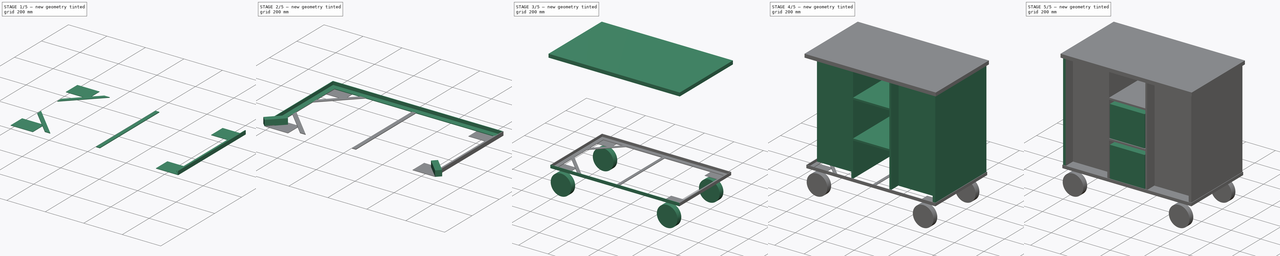
[diagram: build sequence overview — one tinted view per stage of 5, left to right]
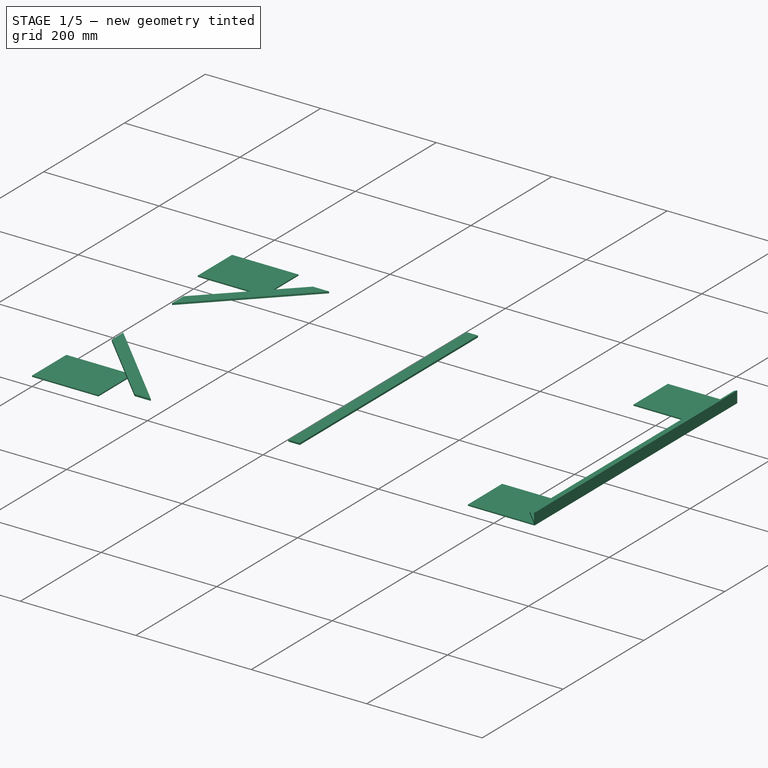
[diagram: stage 1 of 5 — iso view after this stage's code; geometry added in this stage tinted green]
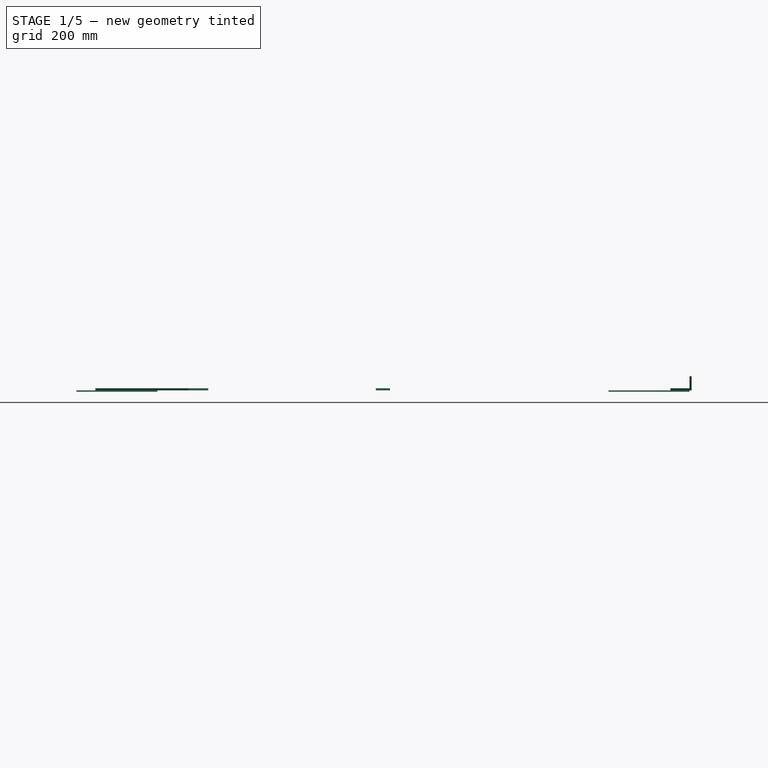
[diagram: stage 1 of 5 — front view after this stage's code; geometry added in this stage tinted green]
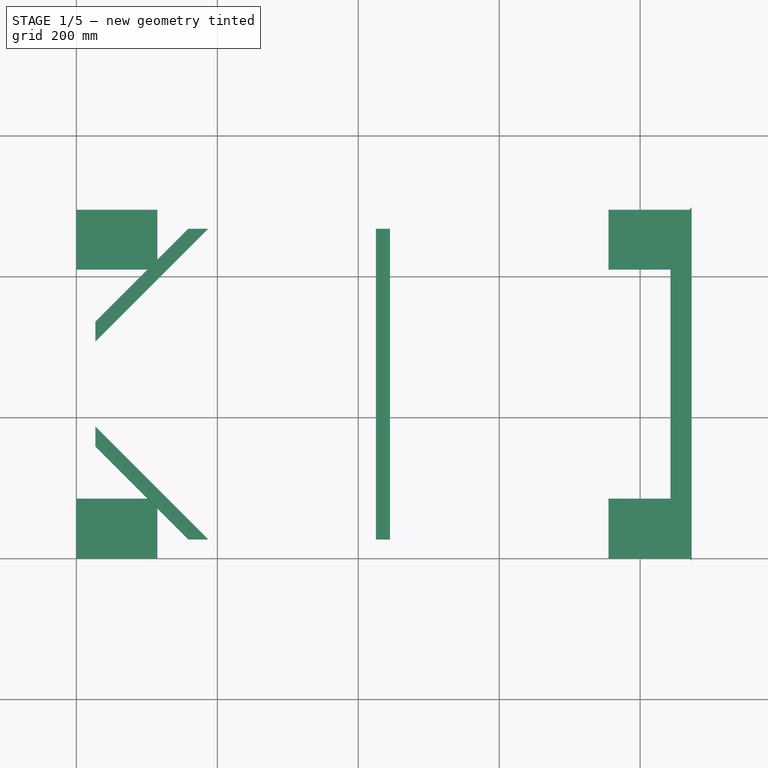
[diagram: stage 1 of 5 — top view after this stage's code; geometry added in this stage tinted green]
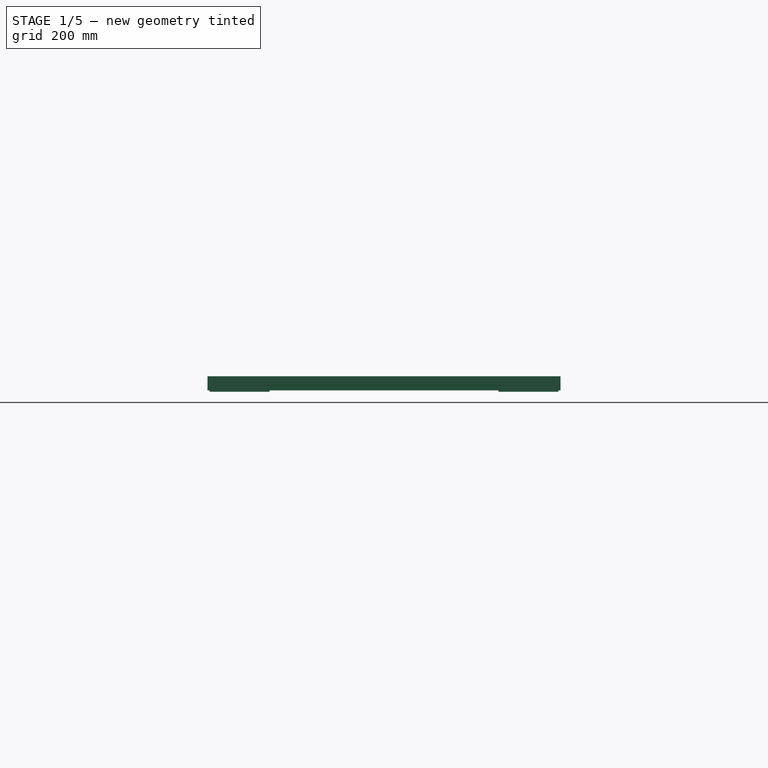
[diagram: stage 1 of 5 — right view after this stage's code; geometry added in this stage tinted green]
FCSTD DOCUMENT  (FreeCAD 0.14R3702 (Git))
Label: Werkstattwagen-3D
License: CC-BY 3.0
LicenseURL: http://creativecommons.org/licenses/by/3.0/
objects: Part::Box×25, Part::Feature×9, Part::Cylinder×4, Part::Cut×4, Sketcher::SketchObject×3, PartDesign::Pad×3, Part::Mirroring×3, Part::Compound×2, Drawing::FeatureViewPart×1, Drawing::FeaturePage×1
note: 56 computed .brp shape members not serialized (recipe doc carries the construction recipe); baked Part::Feature solids carry a one-line shape summary decoded from their .brp

FEATURE [Part::Feature] Cut005
  shape: bbox 30 x 501 x 20 mm, 8 faces (baked)
FEATURE [Part::Mirroring] Part__Mirroring001  label="Rahmen4"
  Base = (0,0,0)
  Normal = (1,0,0)
  Placement = pos=(870,0,0) rot=(0,0,1;0rad)
  Source = -> Cut005
FEATURE [Part::Box] Box024  label="Querstrebe"
  Height = 3
  Length = 20
  Placement = pos=(425,27,-3) rot=(0,0,1;0rad)
  Width = 441
FEATURE [Part::Box] Box025  label="RadPlatte1"
  Height = 2
  Length = 115
  Placement = pos=(0,0,-5) rot=(0,0,1;0rad)
  Width = 85
FEATURE [Part::Box] Box026  label="RadPlatte2"
  Height = 2
  Length = 115
  Placement = pos=(755,0,-5) rot=(0,0,1;0rad)
  Width = 85
FEATURE [Part::Box] Box027  label="RadPatte3"
  Height = 2
  Length = 115
  Placement = pos=(755,410,-5) rot=(0,0,1;0rad)
  Width = 85
FEATURE [Part::Box] Box028  label="RadPlatte4"
  Height = 2
  Length = 115
  Placement = pos=(0,410,-5) rot=(0,0,1;0rad)
  Width = 85
FEATURE [Sketcher::SketchObject] Sketch003
  sketch-geometry (4):
    g0: LineSegment StartX=158.86 StartY=27 StartZ=0 EndX=187.144 EndY=27 EndZ=0
    g1: LineSegment StartX=187.144 StartY=27 StartZ=0 EndX=27 EndY=187.144 EndZ=0
    g2: LineSegment StartX=27 StartY=187.144 StartZ=0 EndX=27 EndY=158.86 EndZ=0
    g3: LineSegment StartX=27 StartY=158.86 StartZ=0 EndX=158.86 EndY=27 EndZ=0
  constraints (12):
    c: Horizontal(g0)
    c: Coincident(g0,g1)
    c: Coincident(g1,g2)
    c: Vertical(g2)
    c: Coincident(g2,g3)
    c: Coincident(g0,g3)
    c: Parallel(g3,g1)
    c: Distance(g0,g1) = 20
    c: DistanceX(g-1,g0) = 158.86
    c: DistanceY(g-1,g0) = 27
    c: DistanceX(g-1,g2) = 27
    c: Angle(g3) = -0.785398
FEATURE [PartDesign::Pad] Pad002004  label="Winkelstrebe1"
  Length = 3
  Length2 = 100
  Reversed = true
  Sketch = -> Sketch003
  Type = 0
FEATURE [Part::Feature] Pad002004001  label="Winkelstrebe002"
  shape: bbox 160.1 x 160.1 x 3 mm, 6 faces (baked)
FEATURE [Part::Mirroring] Part__Mirroring006  label="Winkelstrebe002 (Mirror #5)"
  Base = (0,0,0)
  Normal = (0,1,0)
  Placement = pos=(0,495,0) rot=(0,0,1;0rad)
  Source = -> Pad002004001
FEATURE [Part::Feature] Part__Mirroring005001  label="Winkelstrebe004 (Mirror #4)001 (Mirror #5)001"
  Placement = pos=(870,0,0) rot=(0,0,1;0rad)
  shape: bbox 160.1 x 160.1 x 3 mm, 6 faces (baked)
FEATURE [Part::Feature] Part__Mirroring002001  label="Winkelstrebe003 (Mirror #3)001"
  Placement = pos=(870,0,0) rot=(0,0,1;0rad)
  shape: bbox 160.1 x 160.1 x 3 mm, 6 faces (baked)
FEATURE [Part::Feature] Cut001001_solid  label="Rahmen005 (Solid)"
  shape: bbox 876 x 30 x 20 mm, 8 faces (baked)
FEATURE [Part::Feature] Part__Mirroring005002_solid  label="Rahmen006 (Solid)"
  shape: bbox 876 x 30 x 20 mm, 8 faces (baked)
FEATURE [Part::Feature] Cut004001_solid  label="Rahmen007 (Solid)"
  shape: bbox 30 x 501 x 20 mm, 8 faces (baked)
FEATURE [Part::Feature] Part__Mirroring001001_solid  label="Rahmen008 (Solid)"
  shape: bbox 30 x 501 x 20 mm, 8 faces (baked)
FEATURE [Drawing::FeatureViewPart] Ortho  label="Ortho_-1_1"
  Direction = (0.57735,-0.57735,0.57735)
  HiddenWidth = 0.15
  LineWidth = 0.35
  Rotation = -120
  Scale = 0.1
  ShowHiddenLines = true
  ShowSmoothLines = false
  Tolerance = 0.05
  ViewResult = <blob: 23587 chars omitted>
  X = 52.1289
  Y = 102.737
FEATURE [Drawing::FeaturePage] Page
  Group = -> [Ortho]
  Template = <path>
note: 1 file-system path scrubbed to <path> (originals preserved in the JSON sidecar)
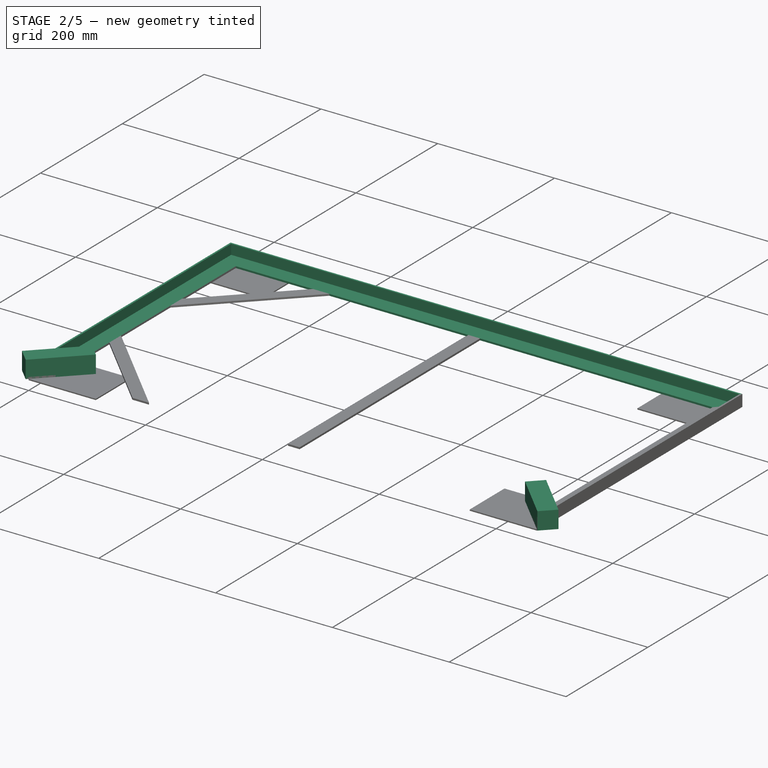
[diagram: stage 2 of 5 — iso view after this stage's code; geometry added in this stage tinted green]
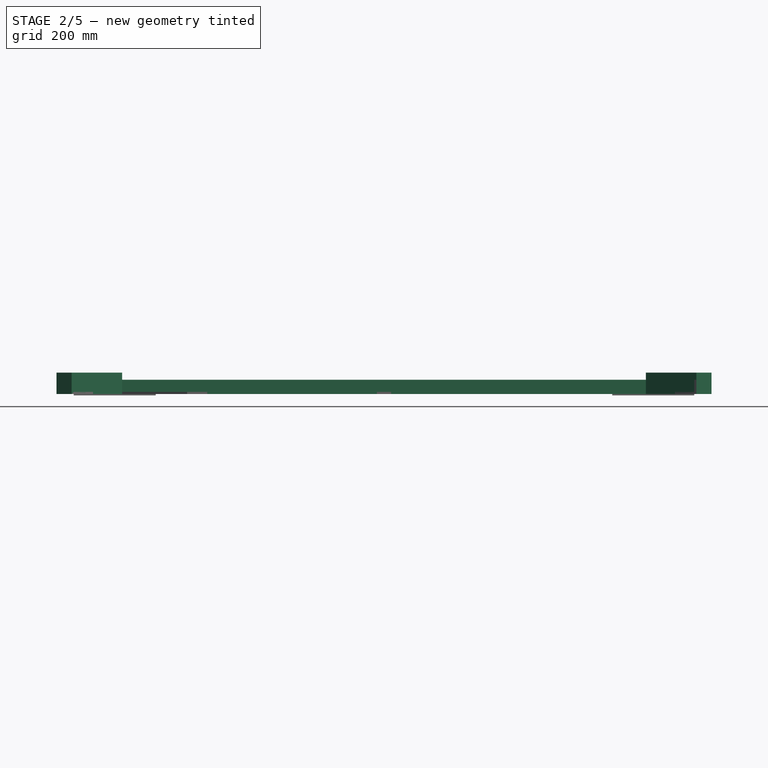
[diagram: stage 2 of 5 — front view after this stage's code; geometry added in this stage tinted green]
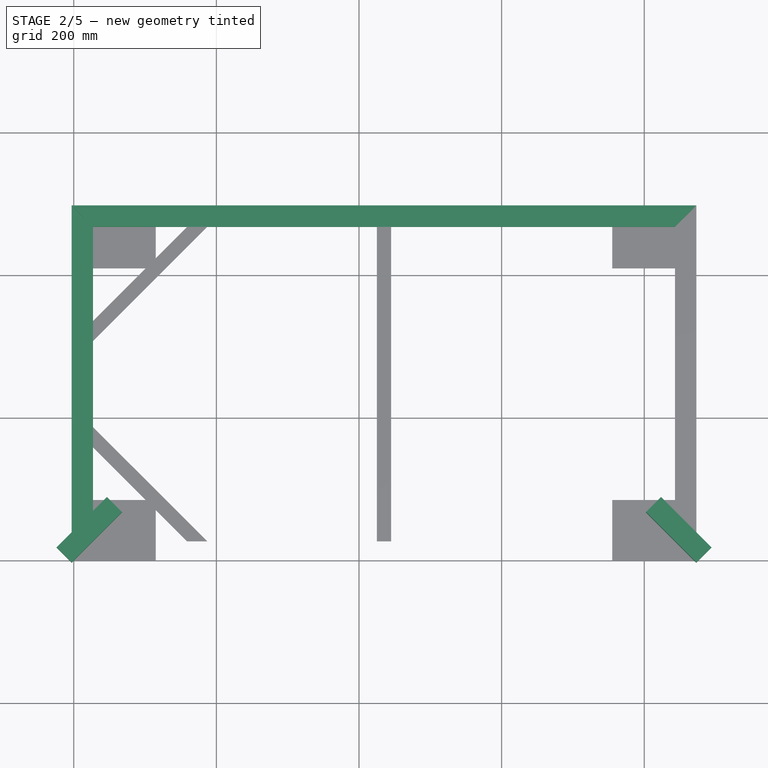
[diagram: stage 2 of 5 — top view after this stage's code; geometry added in this stage tinted green]
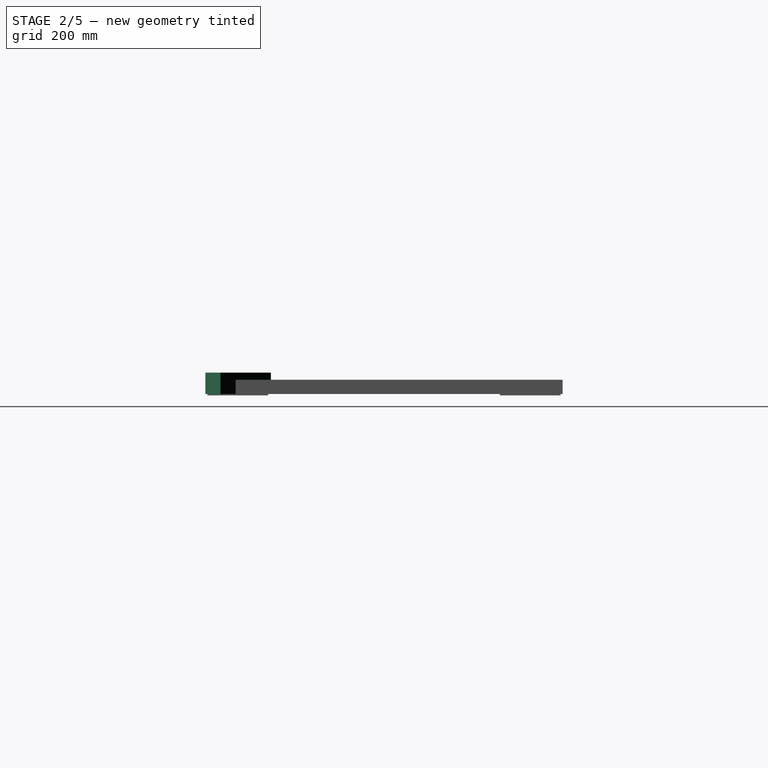
[diagram: stage 2 of 5 — right view after this stage's code; geometry added in this stage tinted green]
FEATURE [Part::Box] Box020  label="Cube"
  Height = 30
  Length = 30
  Placement = pos=(-24.2132,18.2132,-3) rot=(0,0,-1;0.785398rad)
  Width = 100
FEATURE [Part::Box] Box021  label="Cube006"
  Height = 30
  Length = 30
  Placement = pos=(873,-3,-3) rot=(0,0,1;0.785398rad)
  Width = 100
FEATURE [Part::Feature] Cut002
  shape: bbox 876 x 30 x 20 mm, 8 faces (baked)
FEATURE [Part::Mirroring] Part__Mirroring  label="Rahmen2"
  Base = (0,0,0)
  Normal = (0,1,0)
  Placement = pos=(0,495,0) rot=(0,0,1;0rad)
  Source = -> Cut002
FEATURE [Sketcher::SketchObject] Sketch001
  Placement = pos=(0,-3,0) rot=(1,0,0;1.5708rad)
  sketch-geometry (6):
    g0: LineSegment StartX=0 StartY=17 StartZ=0 EndX=0 EndY=0 EndZ=0
    g1: LineSegment StartX=0 StartY=0 StartZ=0 EndX=27 EndY=0 EndZ=0
    g2: LineSegment StartX=27 StartY=0 StartZ=0 EndX=27 EndY=-3 EndZ=0
    g3: LineSegment StartX=27 StartY=-3 StartZ=0 EndX=-3 EndY=-3 EndZ=0
    g4: LineSegment StartX=-3 StartY=-3 StartZ=0 EndX=-3 EndY=17 EndZ=0
    g5: LineSegment StartX=-3 StartY=17 StartZ=0 EndX=0 EndY=17 EndZ=0
  constraints (17):
    c: PointOnObject(g0,g-2)
    c: Coincident(g0,g-1)
    c: Coincident(g0,g1)
    c: Horizontal(g1)
    c: Coincident(g1,g2)
    c: Vertical(g2)
    c: Coincident(g2,g3)
    c: Horizontal(g3)
    c: Coincident(g3,g4)
    c: Vertical(g4)
    c: Coincident(g4,g5)
    c: Horizontal(g5)
    c: Coincident(g0,g5)
    c: DistanceX(g0,g4) = -3
    c: DistanceY(g1,g2) = -3
    c: DistanceX(g2,g3) = -30
    c: DistanceY(g3,g4) = 20
FEATURE [PartDesign::Pad] Pad001
  Length = 501
  Length2 = 100
  Placement = pos=(0,-3,0) rot=(1,0,0;1.5708rad)
  Reversed = true
  Sketch = -> Sketch001
  Type = 0
FEATURE [Part::Box] Box022  label="Cube007"
  Height = 30
  Length = 30
  Placement = pos=(-3,-3,-3) rot=(0,0,-1;0.785398rad)
  Width = 100
FEATURE [Part::Cut] Cut003
  Base = -> Pad001
  Tool = -> Box022
FEATURE [Part::Box] Box023  label="Cube008"
  Height = 30
  Length = 100
  Placement = pos=(-3,498,-3) rot=(0,0,-1;0.785398rad)
  Width = 100
FEATURE [Part::Cut] Cut004  label="Rahmen3"
  Base = -> Cut003
  Tool = -> Box023
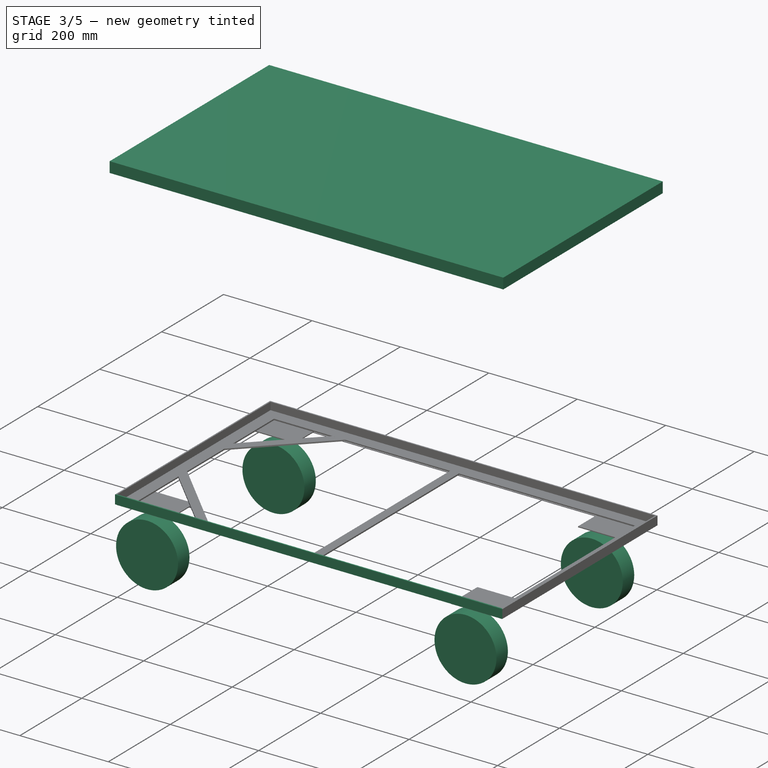
[diagram: stage 3 of 5 — iso view after this stage's code; geometry added in this stage tinted green]
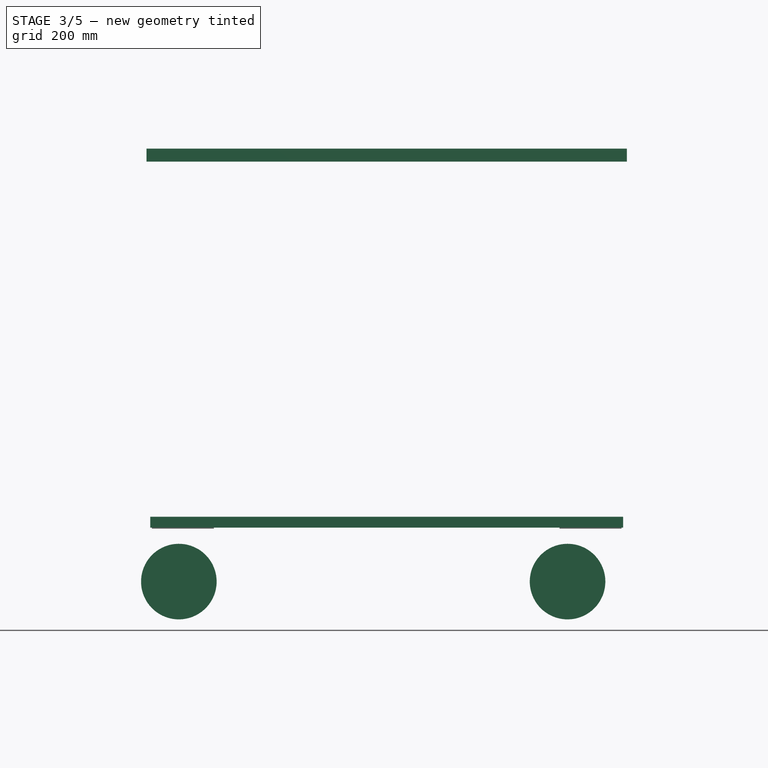
[diagram: stage 3 of 5 — front view after this stage's code; geometry added in this stage tinted green]
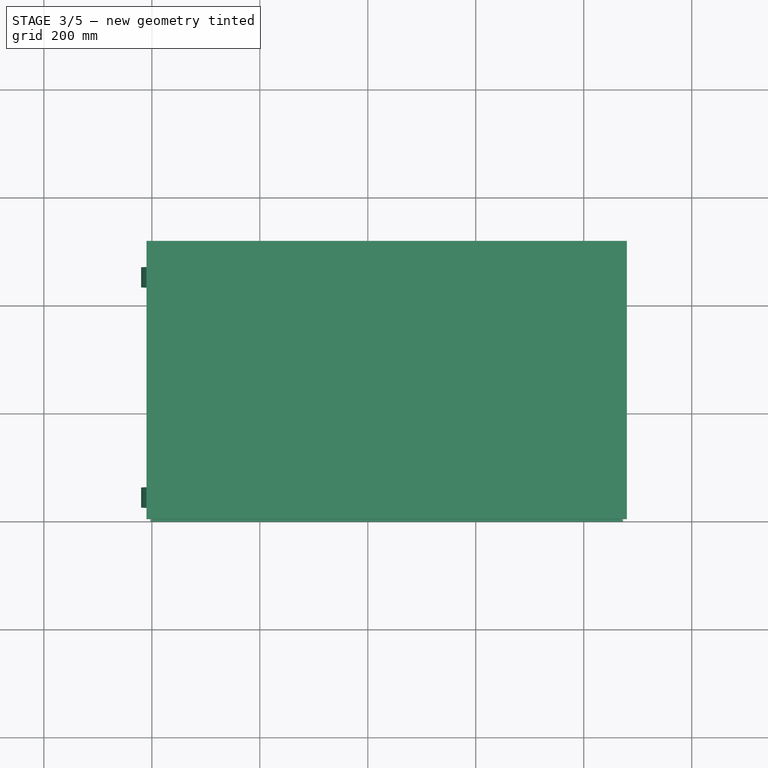
[diagram: stage 3 of 5 — top view after this stage's code; geometry added in this stage tinted green]
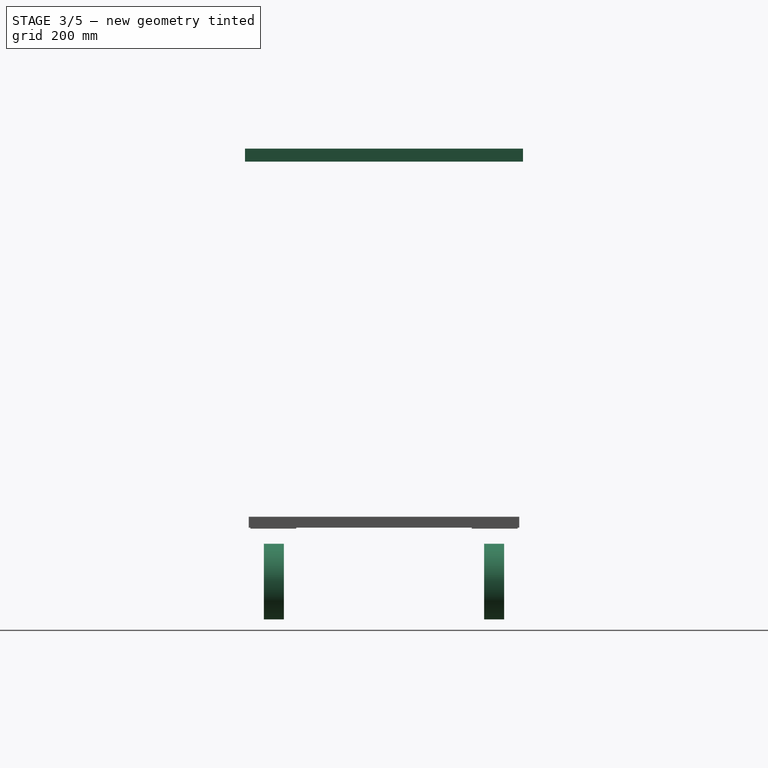
[diagram: stage 3 of 5 — right view after this stage's code; geometry added in this stage tinted green]
FEATURE [Part::Cylinder] Cylinder  label="Rad1"
  Angle = 360
  Height = 37
  Placement = pos=(50,25,-103) rot=(-0.57735,0.57735,0.57735;2.0944rad)
  Radius = 70
FEATURE [Part::Cylinder] Cylinder001  label="Rad2"
  Angle = 360
  Height = 37
  Placement = pos=(50,433,-103) rot=(-0.57735,0.57735,0.57735;2.0944rad)
  Radius = 70
FEATURE [Part::Cylinder] Cylinder002  label="Rad3"
  Angle = 360
  Height = 37
  Placement = pos=(770,433,-103) rot=(-0.57735,0.57735,0.57735;2.0944rad)
  Radius = 70
FEATURE [Part::Cylinder] Cylinder003  label="Rad4"
  Angle = 360
  Height = 37
  Placement = pos=(770,25,-103) rot=(-0.57735,0.57735,0.57735;2.0944rad)
  Radius = 70
FEATURE [Part::Box] Box018  label="Deckplatte1cmU"
  Height = 12
  Length = 890
  Placement = pos=(-10,-10,675) rot=(0,0,1;0rad)
  Width = 515
FEATURE [Part::Box] Box019  label="Deckplatte1cmO"
  Height = 12
  Length = 890
  Placement = pos=(-10,-10,687) rot=(0,0,1;0rad)
  Width = 515
FEATURE [Sketcher::SketchObject] Sketch
  Placement = pos=(-3,-3,-3) rot=(0.57735,0.57735,0.57735;2.0944rad)
  sketch-geometry (6):
    g0: LineSegment StartX=0 StartY=0 StartZ=0 EndX=30 EndY=0 EndZ=0
    g1: LineSegment StartX=30 StartY=0 StartZ=0 EndX=30 EndY=3 EndZ=0
    g2: LineSegment StartX=30 StartY=3 StartZ=0 EndX=3 EndY=3 EndZ=0
    g3: LineSegment StartX=3 StartY=3 StartZ=0 EndX=3 EndY=20 EndZ=0
    g4: LineSegment StartX=3 StartY=20 StartZ=0 EndX=0 EndY=20 EndZ=0
    g5: LineSegment StartX=0 StartY=20 StartZ=0 EndX=0 EndY=0 EndZ=0
  constraints (17):
    c: Horizontal(g0)
    c: Coincident(g0,g1)
    c: Vertical(g1)
    c: Coincident(g1,g2)
    c: Horizontal(g2)
    c: Coincident(g2,g3)
    c: Vertical(g3)
    c: Coincident(g3,g4)
    c: Horizontal(g4)
    c: Coincident(g4,g5)
    c: PointOnObject(g4,g-2)
    c: DistanceX(g-1,g0) = 30
    c: Coincident(g5,g-1)
    c: DistanceY(g-1,g4) = 20
    c: DistanceY(g0,g1) = 3
    c: DistanceX(g3,g4) = -3
    c: Coincident(g0,g-1)
FEATURE [PartDesign::Pad] Pad
  Length = 876
  Length2 = 100
  Placement = pos=(-3,-3,-3) rot=(0.57735,0.57735,0.57735;2.0944rad)
  Sketch = -> Sketch
  Type = 0
FEATURE [Part::Cut] Cut
  Base = -> Pad
  Tool = -> Box020
FEATURE [Part::Cut] Cut001  label="Rahmen1"
  Base = -> Cut
  Tool = -> Box021
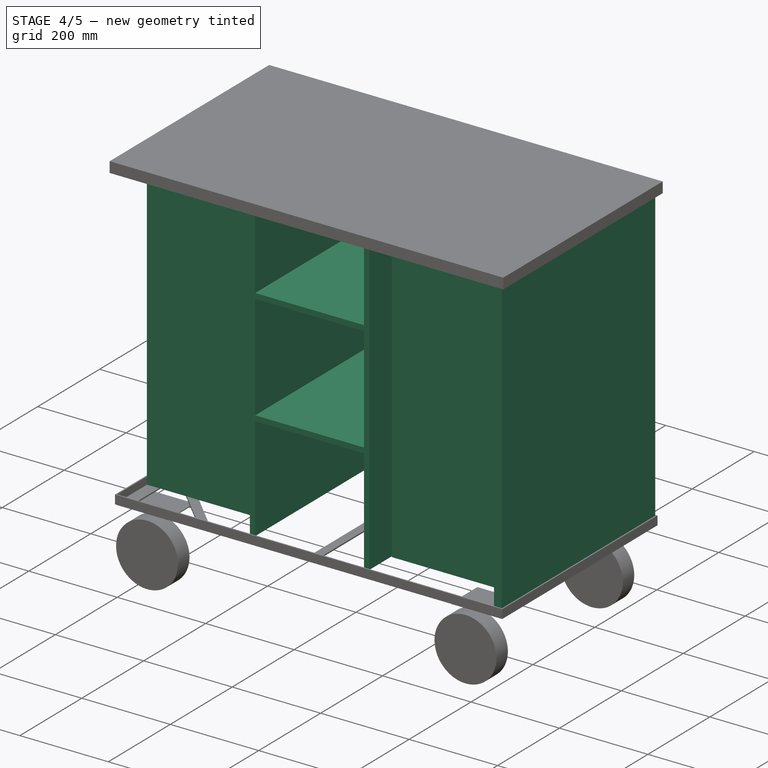
[diagram: stage 4 of 5 — iso view after this stage's code; geometry added in this stage tinted green]
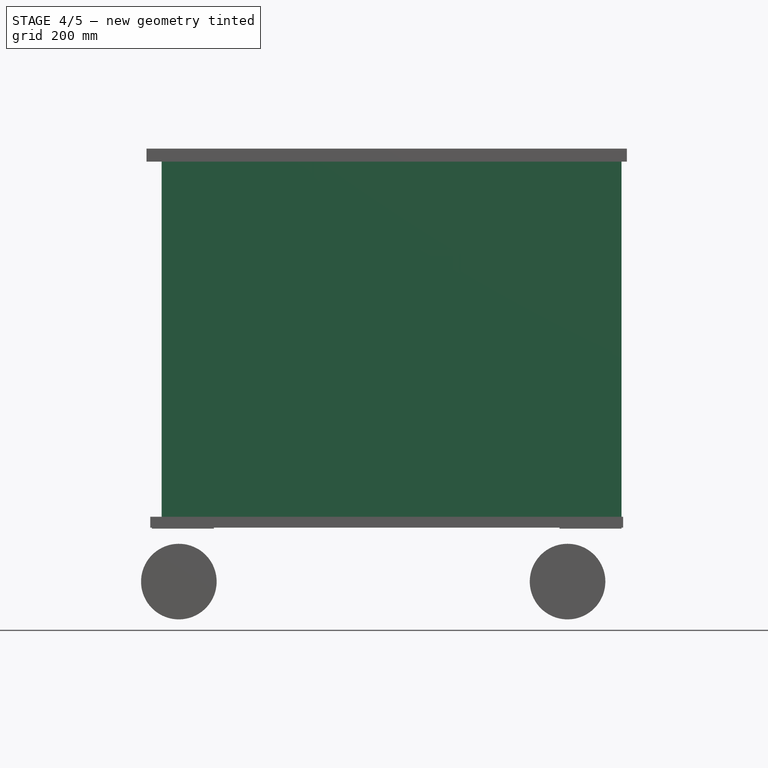
[diagram: stage 4 of 5 — front view after this stage's code; geometry added in this stage tinted green]
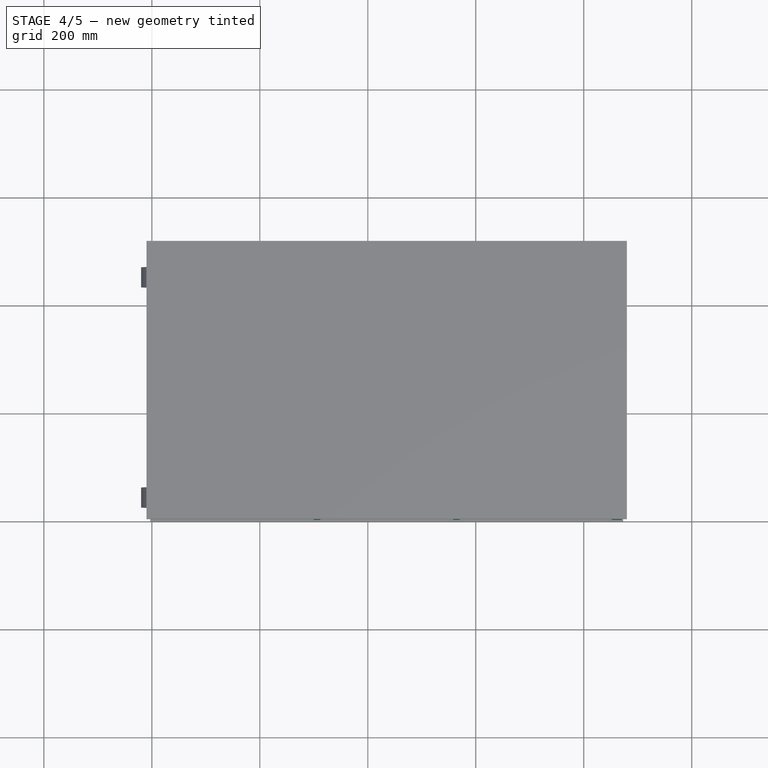
[diagram: stage 4 of 5 — top view after this stage's code; geometry added in this stage tinted green]
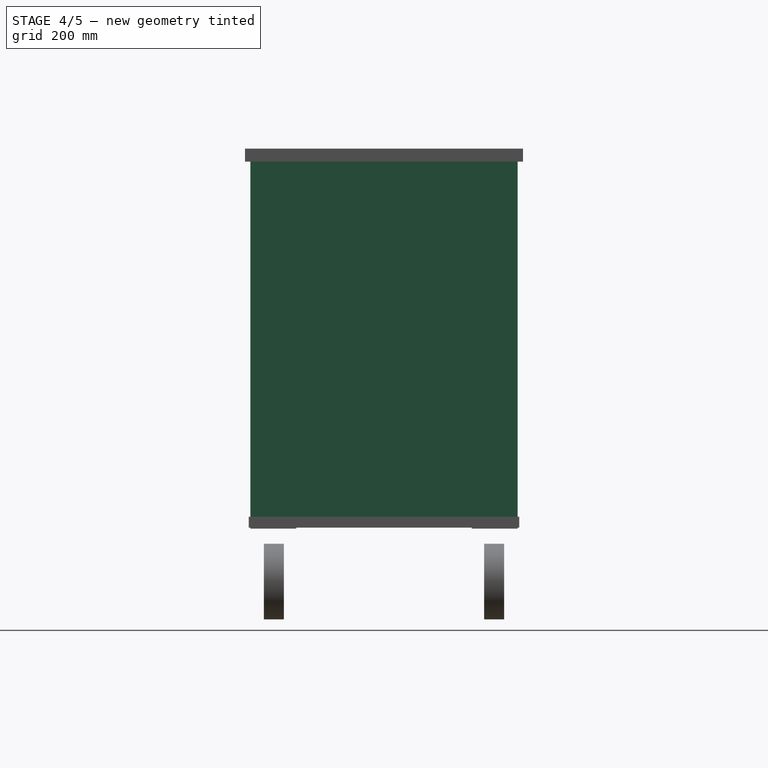
[diagram: stage 4 of 5 — right view after this stage's code; geometry added in this stage tinted green]
FEATURE [Part::Box] Box008  label="TrennwandLinks"
  Height = 660
  Length = 12
  Placement = pos=(300,0,15) rot=(0,0,1;0rad)
  Width = 483
FEATURE [Part::Box] Box009  label="TrennwandRechts"
  Height = 660
  Length = 12
  Placement = pos=(558,0,15) rot=(0,0,1;0rad)
  Width = 483
FEATURE [Part::Box] Box010  label="SeitenwandRechts"
  Height = 660
  Length = 18
  Placement = pos=(852,0,15) rot=(0,0,1;0rad)
  Width = 495
FEATURE [Part::Box] Box  label="Rueckwand"
  Height = 660
  Length = 834
  Placement = pos=(18,483,15) rot=(0,0,1;0rad)
  Width = 12
FEATURE [Part::Box] Box011  label="HelmerLinks"
  Height = 660
  Length = 280
  Placement = pos=(18,70,15) rot=(0,0,1;0rad)
  Width = 410
FEATURE [Part::Box] Box012  label="HelmerRechts"
  Height = 660
  Length = 280
  Placement = pos=(572,70,15) rot=(0,0,1;0rad)
  Width = 410
FEATURE [Part::Box] Box013  label="RegalbodenUnten"
  Height = 12
  Length = 246
  Placement = pos=(312,0,250) rot=(0,0,1;0rad)
  Width = 483
FEATURE [Part::Box] Box014  label="RegalbodenOben"
  Height = 12
  Length = 246
  Placement = pos=(312,0,500) rot=(0,0,1;0rad)
  Width = 483
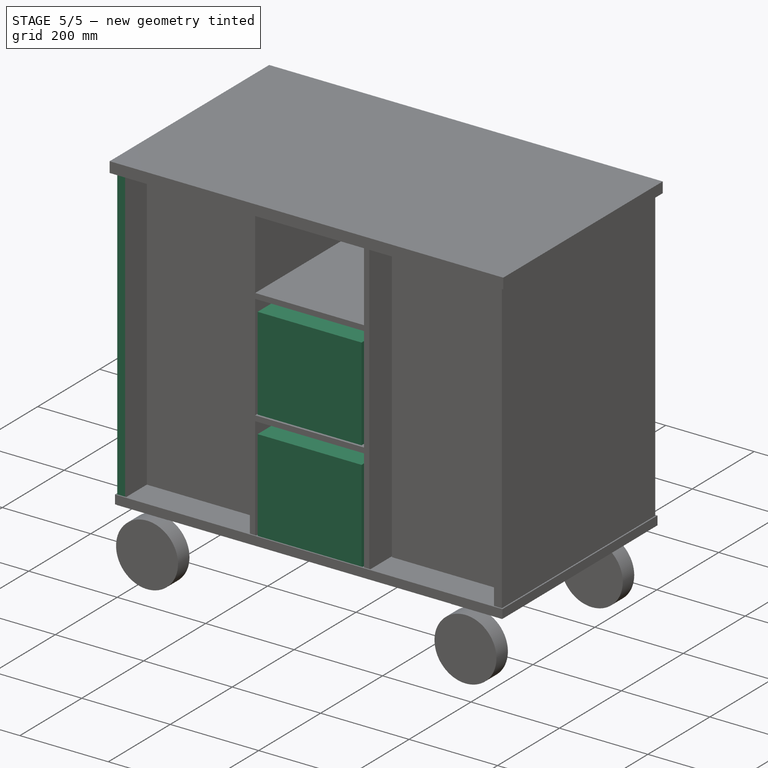
[diagram: stage 5 of 5 — iso view after this stage's code; geometry added in this stage tinted green]
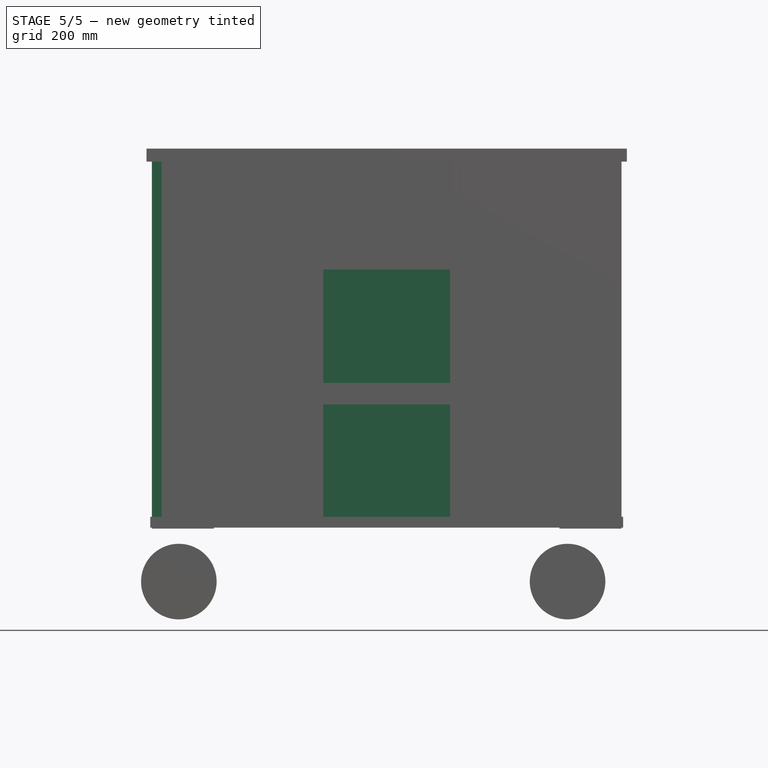
[diagram: stage 5 of 5 — front view after this stage's code; geometry added in this stage tinted green]
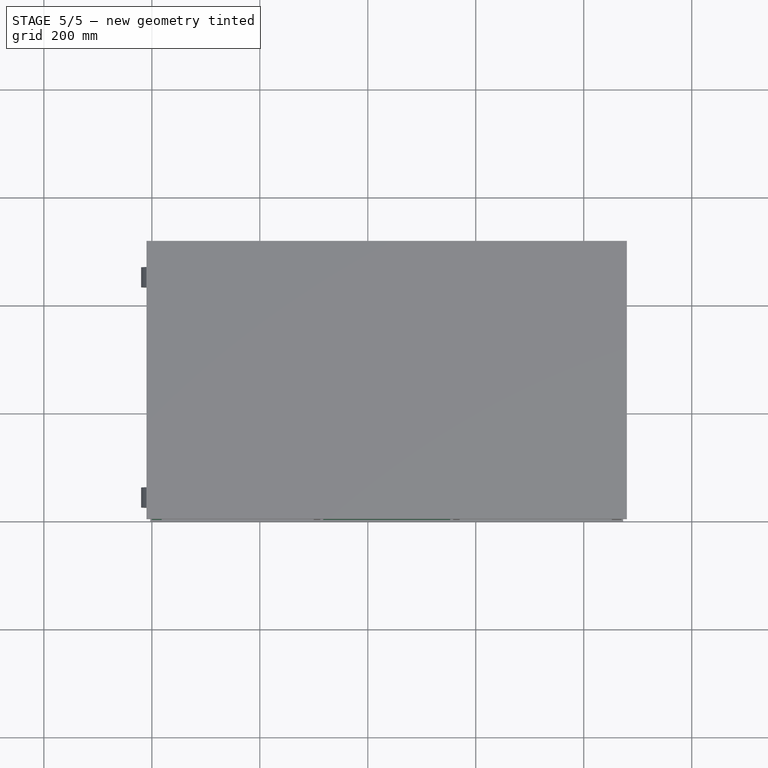
[diagram: stage 5 of 5 — top view after this stage's code; geometry added in this stage tinted green]
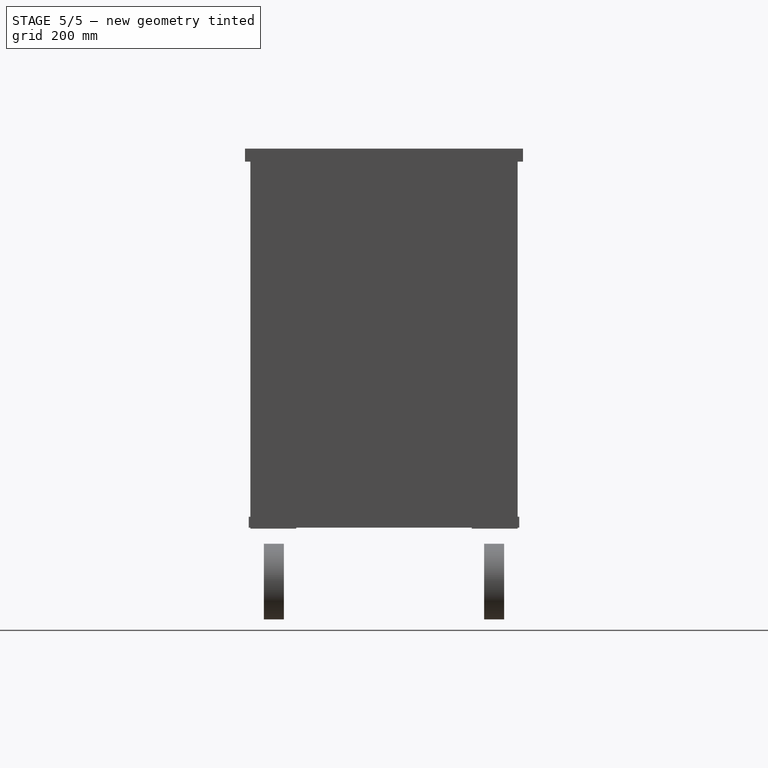
[diagram: stage 5 of 5 — right view after this stage's code; geometry added in this stage tinted green]
FEATURE [Part::Box] Box001  label="Cube003"
  Height = 30
  Length = 235
  Placement = pos=(0,0,180) rot=(0,0,1;0rad)
  Width = 470
FEATURE [Part::Box] Box002  label="Cube002"
  Height = 180
  Length = 235
  Width = 470
FEATURE [Part::Compound] Compound  label="Werkzeugkiste"
  Links = -> [Box001,Box002]
  Placement = pos=(317.5,0,15) rot=(0,0,1;0rad)
FEATURE [Part::Box] Box003  label="Cube004"
  Height = 180
  Length = 235
  Width = 470
FEATURE [Part::Box] Box004  label="Cube005"
  Height = 30
  Length = 235
  Placement = pos=(0,0,180) rot=(0,0,1;0rad)
  Width = 470
FEATURE [Part::Compound] Compound001  label="Werkzeugkiste001"
  Links = -> [Box004,Box003]
  Placement = pos=(317.5,0,265) rot=(0,0,1;0rad)
FEATURE [Part::Box] Box005  label="Bodenplatte"
  Height = 18
  Length = 870
  Placement = pos=(0,0,-3) rot=(0,0,1;0rad)
  Width = 495
FEATURE [Part::Box] Box007  label="SeitenwandLinks"
  Height = 660
  Length = 18
  Placement = pos=(0,0,15) rot=(0,0,1;0rad)
  Width = 495
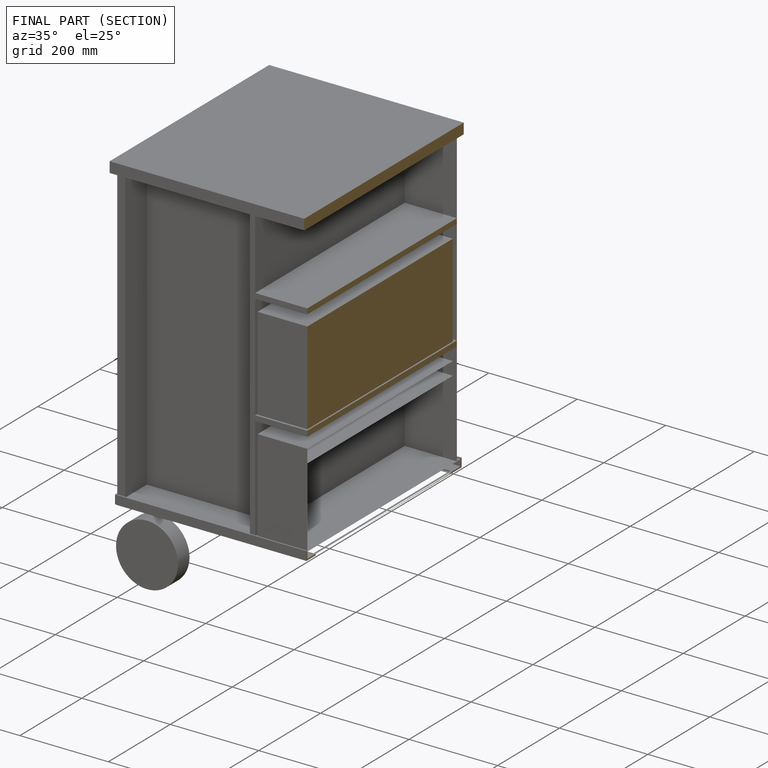
[diagram: finished part — half-section view (interior)]
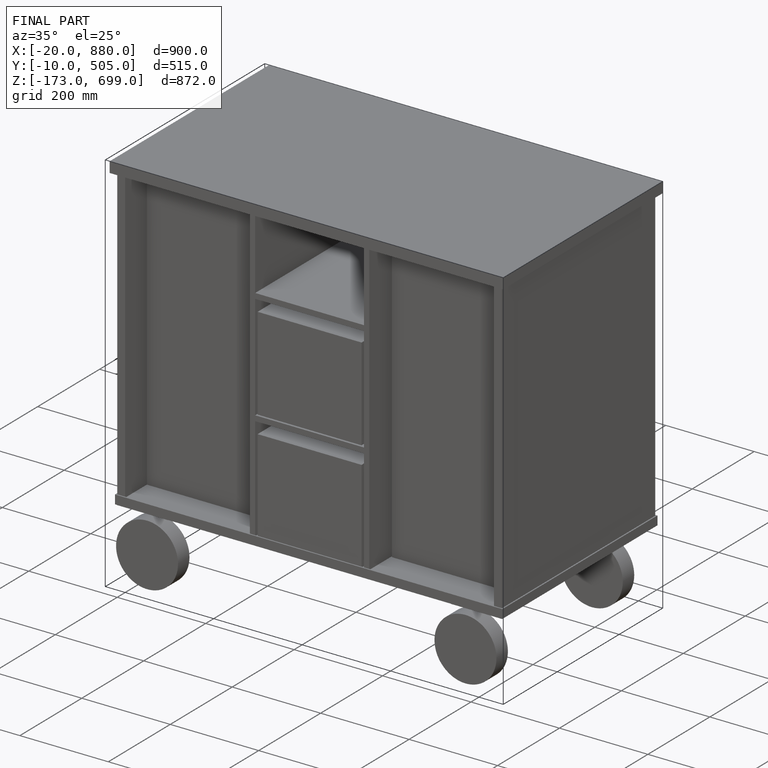
[diagram: finished part — iso view with bounding-box wireframe]
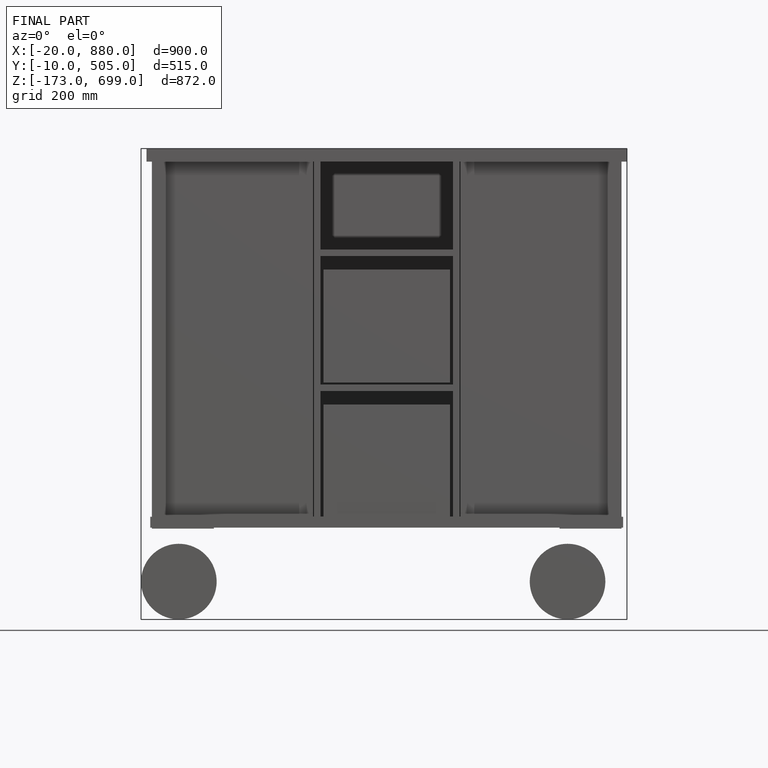
[diagram: finished part — front view with bounding-box wireframe]
